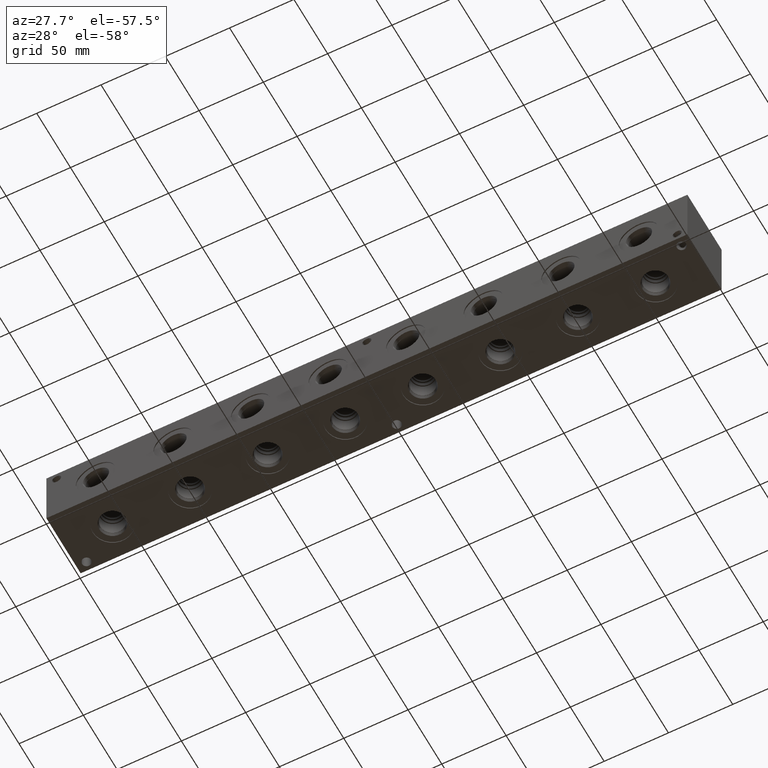
[diagram: clean part render]
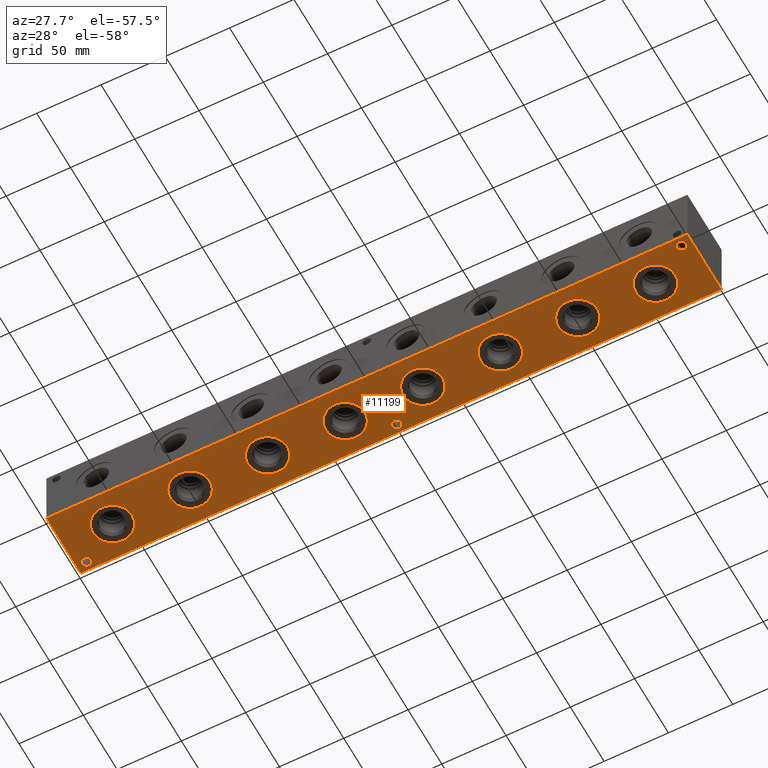
[diagram: same view with one face highlighted and labeled with its STEP entity id]
A machine part, auxiliary view. The second image highlights one B-rep face of the part: STEP entity #11199.
In plain terms, the highlighted planar face has unit normal (0, 0, 1).
Its self-contained STEP definition (entity closure, byte-faithful):
#276=CIRCLE('',#11435,15.3162);
#277=CIRCLE('',#11436,15.3162);
#287=CIRCLE('',#11451,15.3162);
#288=CIRCLE('',#11452,15.3162);
#298=CIRCLE('',#11467,15.3162);
#299=CIRCLE('',#11468,15.3162);
#309=CIRCLE('',#11483,15.3162);
#310=CIRCLE('',#11484,15.3162);
#320=CIRCLE('',#11499,15.3162);
#321=CIRCLE('',#11500,15.3162);
#331=CIRCLE('',#11515,15.3162);
#332=CIRCLE('',#11516,15.3162);
#342=CIRCLE('',#11531,15.3162);
#343=CIRCLE('',#11532,15.3162);
#450=CIRCLE('',#11724,15.3162);
#451=CIRCLE('',#11725,15.3162);
#613=CIRCLE('',#11993,3.5687);
#614=CIRCLE('',#11995,3.5687);
#615=CIRCLE('',#11997,3.5687);
#814=FACE_BOUND('',#2335,.T.);
#815=FACE_BOUND('',#2336,.T.);
#816=FACE_BOUND('',#2337,.T.);
#817=FACE_BOUND('',#2338,.T.);
#818=FACE_BOUND('',#2339,.T.);
#819=FACE_BOUND('',#2340,.T.);
#820=FACE_BOUND('',#2341,.T.);
#821=FACE_BOUND('',#2342,.T.);
#822=FACE_BOUND('',#2343,.T.);
#823=FACE_BOUND('',#2344,.T.);
#824=FACE_BOUND('',#2345,.T.);
#1076=PLANE('',#12163);
#1654=FACE_OUTER_BOUND('',#2334,.T.);
#2334=EDGE_LOOP('',(#10182,#10183,#10184,#10185));
#2335=EDGE_LOOP('',(#10186,#10187));
#2336=EDGE_LOOP('',(#10188,#10189));
#2337=EDGE_LOOP('',(#10190,#10191));
#2338=EDGE_LOOP('',(#10192,#10193));
#2339=EDGE_LOOP('',(#10194,#10195));
#2340=EDGE_LOOP('',(#10196,#10197));
#2341=EDGE_LOOP('',(#10198,#10199));
#2342=EDGE_LOOP('',(#10200,#10201));
#2343=EDGE_LOOP('',(#10202));
#2344=EDGE_LOOP('',(#10203));
#2345=EDGE_LOOP('',(#10204));
#3151=LINE('',#20164,#3964);
#3154=LINE('',#20169,#3967);
#3156=LINE('',#20173,#3969);
#3158=LINE('',#20176,#3971);
#3964=VECTOR('',#14861,10.);
#3967=VECTOR('',#14866,10.);
#3969=VECTOR('',#14870,10.);
#3971=VECTOR('',#14874,10.);
#4874=VERTEX_POINT('',#18142);
#4875=VERTEX_POINT('',#18143);
#4885=VERTEX_POINT('',#18173);
#4886=VERTEX_POINT('',#18174);
#4896=VERTEX_POINT('',#18204);
#4897=VERTEX_POINT('',#18205);
#4907=VERTEX_POINT('',#18235);
#4908=VERTEX_POINT('',#18236);
#4918=VERTEX_POINT('',#18266);
#4919=VERTEX_POINT('',#18267);
#4929=VERTEX_POINT('',#18297);
#4930=VERTEX_POINT('',#18298);
#4940=VERTEX_POINT('',#18328);
#4941=VERTEX_POINT('',#18329);
#5122=VERTEX_POINT('',#19363);
#5123=VERTEX_POINT('',#19364);
#5275=VERTEX_POINT('',#19846);
#5276=VERTEX_POINT('',#19850);
#5277=VERTEX_POINT('',#19854);
#5374=VERTEX_POINT('',#20162);
#5375=VERTEX_POINT('',#20163);
#5376=VERTEX_POINT('',#20168);
#5377=VERTEX_POINT('',#20172);
#6253=EDGE_CURVE('',#4874,#4875,#276,.T.);
#6254=EDGE_CURVE('',#4875,#4874,#277,.T.);
#6268=EDGE_CURVE('',#4885,#4886,#287,.T.);
#6269=EDGE_CURVE('',#4886,#4885,#288,.T.);
#6283=EDGE_CURVE('',#4896,#4897,#298,.T.);
#6284=EDGE_CURVE('',#4897,#4896,#299,.T.);
#6298=EDGE_CURVE('',#4907,#4908,#309,.T.);
#6299=EDGE_CURVE('',#4908,#4907,#310,.T.);
#6313=EDGE_CURVE('',#4918,#4919,#320,.T.);
#6314=EDGE_CURVE('',#4919,#4918,#321,.T.);
#6328=EDGE_CURVE('',#4929,#4930,#331,.T.);
#6329=EDGE_CURVE('',#4930,#4929,#332,.T.);
#6343=EDGE_CURVE('',#4940,#4941,#342,.T.);
#6344=EDGE_CURVE('',#4941,#4940,#343,.T.);
#6593=EDGE_CURVE('',#5122,#5123,#450,.T.);
#6594=EDGE_CURVE('',#5123,#5122,#451,.T.);
#6830=EDGE_CURVE('',#5275,#5275,#613,.T.);
#6832=EDGE_CURVE('',#5276,#5276,#614,.T.);
#6834=EDGE_CURVE('',#5277,#5277,#615,.T.);
#6979=EDGE_CURVE('',#5374,#5375,#3151,.T.);
#6982=EDGE_CURVE('',#5376,#5374,#3154,.T.);
#6984=EDGE_CURVE('',#5377,#5376,#3156,.T.);
#6986=EDGE_CURVE('',#5375,#5377,#3158,.T.);
#10182=ORIENTED_EDGE('',*,*,#6986,.F.);
#10183=ORIENTED_EDGE('',*,*,#6979,.F.);
#10184=ORIENTED_EDGE('',*,*,#6982,.F.);
#10185=ORIENTED_EDGE('',*,*,#6984,.F.);
#10186=ORIENTED_EDGE('',*,*,#6253,.T.);
#10187=ORIENTED_EDGE('',*,*,#6254,.T.);
#10188=ORIENTED_EDGE('',*,*,#6268,.T.);
#10189=ORIENTED_EDGE('',*,*,#6269,.T.);
#10190=ORIENTED_EDGE('',*,*,#6283,.T.);
#10191=ORIENTED_EDGE('',*,*,#6284,.T.);
#10192=ORIENTED_EDGE('',*,*,#6298,.T.);
#10193=ORIENTED_EDGE('',*,*,#6299,.T.);
#10194=ORIENTED_EDGE('',*,*,#6313,.T.);
#10195=ORIENTED_EDGE('',*,*,#6314,.T.);
#10196=ORIENTED_EDGE('',*,*,#6328,.T.);
#10197=ORIENTED_EDGE('',*,*,#6329,.T.);
#10198=ORIENTED_EDGE('',*,*,#6343,.T.);
#10199=ORIENTED_EDGE('',*,*,#6344,.T.);
#10200=ORIENTED_EDGE('',*,*,#6593,.T.);
#10201=ORIENTED_EDGE('',*,*,#6594,.T.);
#10202=ORIENTED_EDGE('',*,*,#6830,.T.);
#10203=ORIENTED_EDGE('',*,*,#6832,.T.);
#10204=ORIENTED_EDGE('',*,*,#6834,.T.);
#11199=ADVANCED_FACE('',(#1654,#814,#815,#816,#817,#818,#819,#820,#821,
#822,#823,#824),#1076,.F.);
#11435=AXIS2_PLACEMENT_3D('',#18144,#13233,#13234);
#11436=AXIS2_PLACEMENT_3D('',#18145,#13235,#13236);
#11451=AXIS2_PLACEMENT_3D('',#18175,#13269,#13270);
#11452=AXIS2_PLACEMENT_3D('',#18176,#13271,#13272);
#11467=AXIS2_PLACEMENT_3D('',#18206,#13305,#13306);
#11468=AXIS2_PLACEMENT_3D('',#18207,#13307,#13308);
#11483=AXIS2_PLACEMENT_3D('',#18237,#13341,#13342);
#11484=AXIS2_PLACEMENT_3D('',#18238,#13343,#13344);
#11499=AXIS2_PLACEMENT_3D('',#18268,#13377,#13378);
#11500=AXIS2_PLACEMENT_3D('',#18269,#13379,#13380);
#11515=AXIS2_PLACEMENT_3D('',#18299,#13413,#13414);
#11516=AXIS2_PLACEMENT_3D('',#18300,#13415,#13416);
#11531=AXIS2_PLACEMENT_3D('',#18330,#13449,#13450);
#11532=AXIS2_PLACEMENT_3D('',#18331,#13451,#13452);
#11724=AXIS2_PLACEMENT_3D('',#19365,#13879,#13880);
#11725=AXIS2_PLACEMENT_3D('',#19366,#13881,#13882);
#11993=AXIS2_PLACEMENT_3D('',#19848,#14479,#14480);
#11995=AXIS2_PLACEMENT_3D('',#19852,#14484,#14485);
#11997=AXIS2_PLACEMENT_3D('',#19856,#14489,#14490);
#12163=AXIS2_PLACEMENT_3D('',#20178,#14877,#14878);
#13233=DIRECTION('center_axis',(0.,0.,1.));
#13234=DIRECTION('ref_axis',(1.,0.,0.));
#13235=DIRECTION('center_axis',(0.,0.,1.));
#13236=DIRECTION('ref_axis',(1.,0.,0.));
#13269=DIRECTION('center_axis',(0.,0.,1.));
#13270=DIRECTION('ref_axis',(1.,0.,0.));
#13271=DIRECTION('center_axis',(0.,0.,1.));
#13272=DIRECTION('ref_axis',(1.,0.,0.));
#13305=DIRECTION('center_axis',(0.,0.,1.));
#13306=DIRECTION('ref_axis',(1.,0.,0.));
#13307=DIRECTION('center_axis',(0.,0.,1.));
#13308=DIRECTION('ref_axis',(1.,0.,0.));
#13341=DIRECTION('center_axis',(0.,0.,1.));
#13342=DIRECTION('ref_axis',(1.,0.,0.));
#13343=DIRECTION('center_axis',(0.,0.,1.));
#13344=DIRECTION('ref_axis',(1.,0.,0.));
#13377=DIRECTION('center_axis',(0.,0.,1.));
#13378=DIRECTION('ref_axis',(1.,0.,0.));
#13379=DIRECTION('center_axis',(0.,0.,1.));
#13380=DIRECTION('ref_axis',(1.,0.,0.));
#13413=DIRECTION('center_axis',(0.,0.,1.));
#13414=DIRECTION('ref_axis',(1.,0.,0.));
#13415=DIRECTION('center_axis',(0.,0.,1.));
#13416=DIRECTION('ref_axis',(1.,0.,0.));
#13449=DIRECTION('center_axis',(0.,0.,1.));
#13450=DIRECTION('ref_axis',(1.,0.,0.));
#13451=DIRECTION('center_axis',(0.,0.,1.));
#13452=DIRECTION('ref_axis',(1.,0.,0.));
#13879=DIRECTION('center_axis',(0.,0.,1.));
#13880=DIRECTION('ref_axis',(1.,0.,0.));
#13881=DIRECTION('center_axis',(0.,0.,1.));
#13882=DIRECTION('ref_axis',(1.,0.,0.));
#14479=DIRECTION('center_axis',(0.,0.,1.));
#14480=DIRECTION('ref_axis',(1.,0.,0.));
#14484=DIRECTION('center_axis',(0.,0.,1.));
#14485=DIRECTION('ref_axis',(1.,0.,0.));
#14489=DIRECTION('center_axis',(0.,0.,1.));
#14490=DIRECTION('ref_axis',(1.,0.,0.));
#14861=DIRECTION('',(0.,-1.,0.));
#14866=DIRECTION('',(-1.,0.,0.));
#14870=DIRECTION('',(0.,1.,0.));
#14874=DIRECTION('',(1.,0.,0.));
#14877=DIRECTION('center_axis',(0.,0.,1.));
#14878=DIRECTION('ref_axis',(1.,0.,0.));
#18142=CARTESIAN_POINT('',(475.6912,25.4,0.));
#18143=CARTESIAN_POINT('',(445.0588,25.4,0.));
#18144=CARTESIAN_POINT('Origin',(460.375,25.4,0.));
#18145=CARTESIAN_POINT('Origin',(460.375,25.4,0.));
#18173=CARTESIAN_POINT('',(415.3662,25.4,0.));
#18174=CARTESIAN_POINT('',(384.7338,25.4,0.));
#18175=CARTESIAN_POINT('Origin',(400.05,25.4,0.));
#18176=CARTESIAN_POINT('Origin',(400.05,25.4,0.));
#18204=CARTESIAN_POINT('',(355.0412,25.4,0.));
#18205=CARTESIAN_POINT('',(324.4088,25.4,0.));
#18206=CARTESIAN_POINT('Origin',(339.725,25.4,0.));
#18207=CARTESIAN_POINT('Origin',(339.725,25.4,0.));
#18235=CARTESIAN_POINT('',(294.7162,25.4,0.));
#18236=CARTESIAN_POINT('',(264.0838,25.4,0.));
#18237=CARTESIAN_POINT('Origin',(279.4,25.4,0.));
#18238=CARTESIAN_POINT('Origin',(279.4,25.4,0.));
#18266=CARTESIAN_POINT('',(234.3912,25.4,0.));
#18267=CARTESIAN_POINT('',(203.7588,25.4,0.));
#18268=CARTESIAN_POINT('Origin',(219.075,25.4,0.));
#18269=CARTESIAN_POINT('Origin',(219.075,25.4,0.));
#18297=CARTESIAN_POINT('',(174.0662,25.4,0.));
#18298=CARTESIAN_POINT('',(143.4338,25.4,0.));
#18299=CARTESIAN_POINT('Origin',(158.75,25.4,0.));
#18300=CARTESIAN_POINT('Origin',(158.75,25.4,0.));
#18328=CARTESIAN_POINT('',(113.7412,25.4,0.));
#18329=CARTESIAN_POINT('',(83.1088,25.4,0.));
#18330=CARTESIAN_POINT('Origin',(98.425,25.4,0.));
#18331=CARTESIAN_POINT('Origin',(98.425,25.4,0.));
#19363=CARTESIAN_POINT('',(53.4162,25.4,0.));
#19364=CARTESIAN_POINT('',(22.7838,25.4,0.));
#19365=CARTESIAN_POINT('Origin',(38.1,25.4,0.));
#19366=CARTESIAN_POINT('Origin',(38.1,25.4,0.));
#19846=CARTESIAN_POINT('',(486.9561,6.35,0.));
#19848=CARTESIAN_POINT('Origin',(490.5248,6.35,0.));
#19850=CARTESIAN_POINT('',(4.3561,44.45,0.));
#19852=CARTESIAN_POINT('Origin',(7.9248,44.45,0.));
#19854=CARTESIAN_POINT('',(245.6561,44.45,0.));
#19856=CARTESIAN_POINT('Origin',(249.2248,44.45,0.));
#20162=CARTESIAN_POINT('',(0.,50.8,0.));
#20163=CARTESIAN_POINT('',(0.,0.,0.));
#20164=CARTESIAN_POINT('',(0.,50.8,0.));
#20168=CARTESIAN_POINT('',(498.475,50.8,0.));
#20169=CARTESIAN_POINT('',(498.475,50.8,0.));
#20172=CARTESIAN_POINT('',(498.475,0.,0.));
#20173=CARTESIAN_POINT('',(498.475,0.,0.));
#20176=CARTESIAN_POINT('',(0.,0.,0.));
#20178=CARTESIAN_POINT('Origin',(249.2375,25.4,0.));